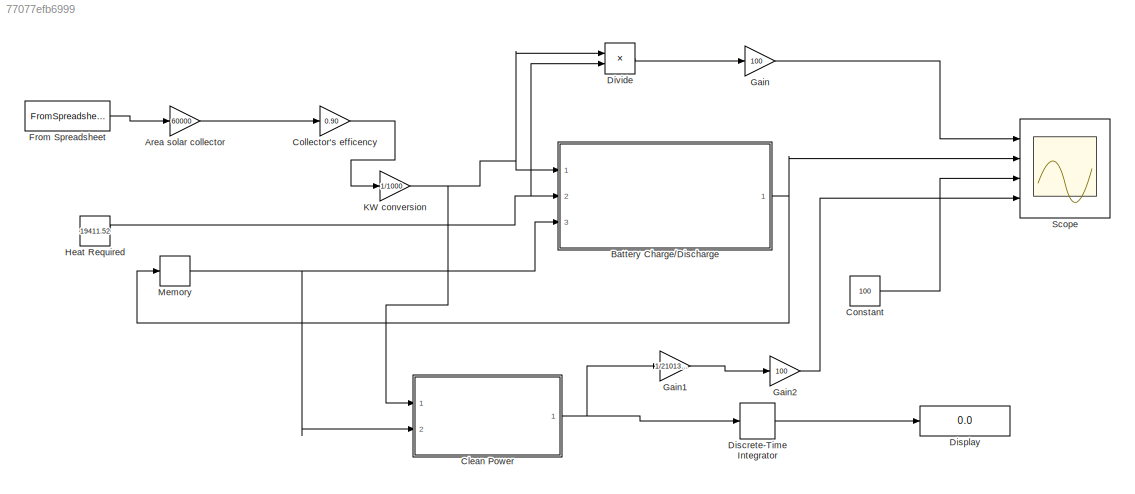
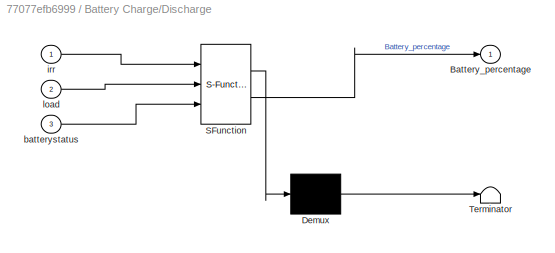
MODEL slx_77077efb6999
KIND model
CONFIG AbsTol = auto
CONFIG EnableMultiTasking = off
CONFIG FixedStep = 1
CONFIG MaxStep = auto
CONFIG MinStep = auto
CONFIG RelTol = 1e-3
CONFIG SampleTimeConstraint = Unconstrained
CONFIG SolverName = ode1
CONFIG StartTime = 0.0
CONFIG StopTime = 8760
BLOCK [Gain] Area solar collector
  Gain = 60000
BLOCK [SubSystem] Battery Charge//Discharge
  ErrorFcn = Stateflow.Translate.translate
  PermitHierarchicalResolution = ExplicitOnly
  Ports = [3, 1]
  RequestExecContextInheritance = off
  SFBlockType = MATLAB Function
  TreatAsAtomicUnit = on
BLOCK [Demux] Battery Charge//Discharge/ Demux 
  Outputs = 1
  Ports = [1, 1]
BLOCK [S-Function] Battery Charge//Discharge/ SFunction 
  EnableBusSupport = on
  FunctionName = sf_sfun
  PortCounts = [3 2]
  Ports = [3, 2]
  SFcnIsStateOwnerBlock = off
  SFunctionDeploymentMode = off
  Tag = Stateflow S-Function 2
BLOCK [Terminator] Battery Charge//Discharge/ Terminator 
BLOCK [Outport] Battery Charge//Discharge/Battery_percentage
BLOCK [Inport] Battery Charge//Discharge/batterystatus
  Port = 3
BLOCK [Inport] Battery Charge//Discharge/irr
BLOCK [Inport] Battery Charge//Discharge/load
  Port = 2
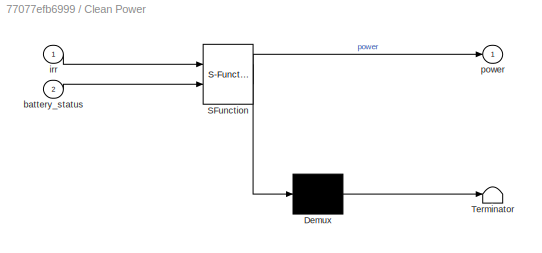
BLOCK [SubSystem] Clean Power
  ErrorFcn = Stateflow.Translate.translate
  PermitHierarchicalResolution = ExplicitOnly
  Ports = [2, 1]
  RequestExecContextInheritance = off
  SFBlockType = MATLAB Function
  TreatAsAtomicUnit = on
BLOCK [Demux] Clean Power/ Demux 
  Outputs = 1
  Ports = [1, 1]
BLOCK [S-Function] Clean Power/ SFunction 
  EnableBusSupport = on
  FunctionName = sf_sfun
  PortCounts = [2 2]
  Ports = [2, 2]
  SFcnIsStateOwnerBlock = off
  SFunctionDeploymentMode = off
  Tag = Stateflow S-Function 1
BLOCK [Terminator] Clean Power/ Terminator 
BLOCK [Inport] Clean Power/battery_status
  Port = 2
BLOCK [Inport] Clean Power/irr
BLOCK [Outport] Clean Power/power
BLOCK [Gain] Collector's efficency
  Gain = 0.90
BLOCK [Constant] Constant
  Value = 100
BLOCK [DiscreteIntegrator] Discrete-Time Integrator
  ICPrevOutput = DiscIntNeverNeededParam
  ICPrevScaledInput = DiscIntNeverNeededParam
  InitialConditionSetting = Auto
  Ports = [1, 1]
  SampleTime = -1
BLOCK [Display] Display
  Decimation = 1
  Ports = [1]
BLOCK [Product] Divide
  Inputs = */
  Ports = [2, 1]
BLOCK [FromSpreadsheet] From Spreadsheet
  FileName = data_sardegna.xls
  Ports = [0, 1]
  Range = A2:B8784
  SheetName = data
BLOCK [Gain] Gain
  Gain = 100
BLOCK [Gain] Gain1
  Gain = 1/21013.72
BLOCK [Gain] Gain2
  Gain = 100
BLOCK [Constant] Heat Required
  Value = 19411.52
BLOCK [Gain] KW conversion
  Gain = 1/1000
BLOCK [Memory] Memory
  InitialCondition = 100
BLOCK [Scope] Scope
  Floating = off
  NumInputPorts = 4
  Ports = [4]
  ScopeSpecificationString = Simulink.scopes.TimeScopeBlockCfg('CurrentConfiguration', extmgr.ConfigurationSet(extmgr.Configuration('Core','General UI',true),extmgr.Configuration('Core','Source UI',true),extmgr.Configuration('Sources','WiredSimulink',true),extmgr.Configuration('Visuals','Time Domain',true,'SerializedDisplays',{struct('MinYLimReal','-12.5','MaxYLimReal','194.35696','YLabelReal','','MinYLimMag','0.00000','MaxYL...<+1418ch>
LINE Area solar collector:1 -> Collector's efficency:1
NET Battery Charge//Discharge:1 -> Memory:1, Scope:2
NET Clean Power:1 -> Discrete-Time Integrator:1, Gain1:1
LINE Collector's efficency:1 -> KW conversion:1
LINE Constant:1 -> Scope:3
LINE Discrete-Time Integrator:1 -> Display:1
LINE Divide:1 -> Gain:1
LINE From Spreadsheet:1 -> Area solar collector:1
LINE Gain1:1 -> Gain2:1
LINE Gain2:1 -> Scope:4
LINE Gain:1 -> Scope:1
NET Heat Required:1 -> Battery Charge//Discharge:2, Divide:2
NET KW conversion:1 -> Battery Charge//Discharge:1, Clean Power:1, Divide:1
NET Memory:1 -> Battery Charge//Discharge:3, Clean Power:2
note: NET lines group one-source signal fan-out (src -> all destinations, sorted); 1:1 wires keep LINE
CHART Battery Charge//Discharge states=1 transitions=1
  STATE_LABEL 'eML_blk_kernel()'
  STATE_LABEL 'SCRIPT:\nfunction Battery_percentage = saldo(irr,load,batterystatus)\nBattery_percentage = 0;\nDelta = irr-load;\nif Delta < 0\n    if batterystatus > 0\n        Battery_percentage = batterystatus-1;\n        if Battery_percentage < 0\n            Battery_percentage = 0;\n        end\n        return\n    elseif batterystatus <= 0\n        Battery_percentage = 0;\n        return\n    end\nend\nif Delta >=0\n    if ...<+315ch>'
CHART Clean Power states=1 transitions=1
  STATE_LABEL 'eML_blk_kernel()'
  STATE_LABEL 'SCRIPT:\nfunction power = trigger(irr,battery_status)\nSteam_trigger = 21013.72;\npower = 0;\nif battery_status == 100\n    if irr < Steam_trigger\n        power = 0;\n        return\n    else\n        power = irr;\n    end\nend\nend\n'
CHART  states=0 transitions=0
CHART  states=0 transitions=0
